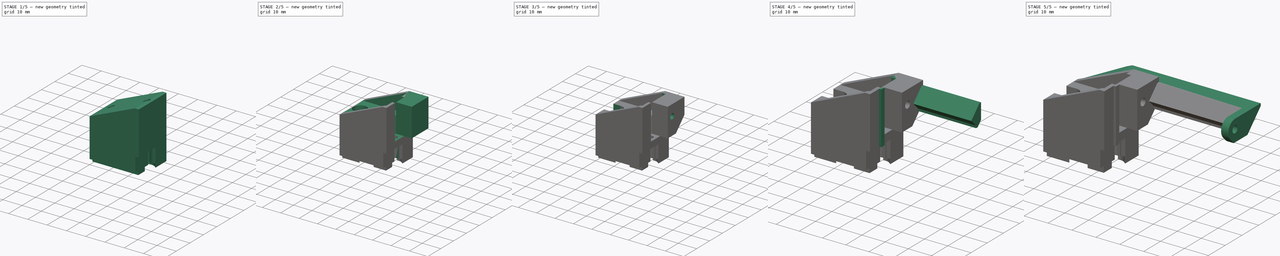
[diagram: build sequence overview — one tinted view per stage of 5, left to right]
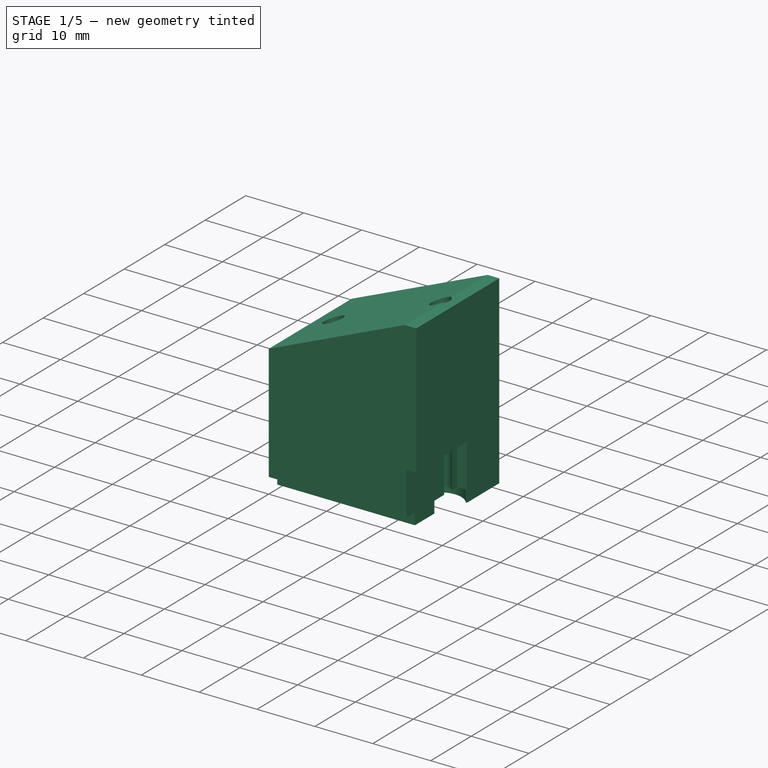
[diagram: stage 1 of 5 — iso view after this stage's code; geometry added in this stage tinted green]
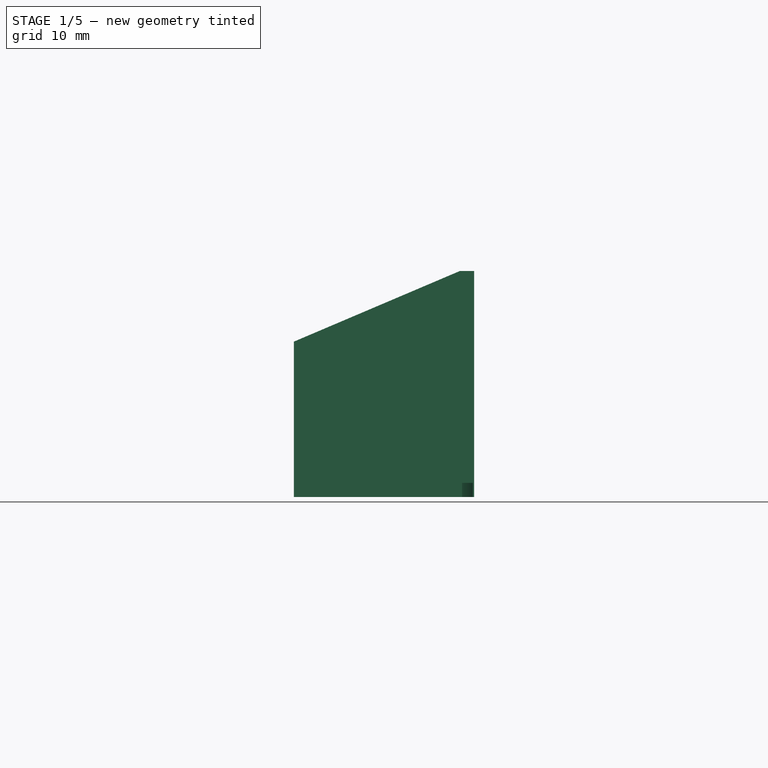
[diagram: stage 1 of 5 — front view after this stage's code; geometry added in this stage tinted green]
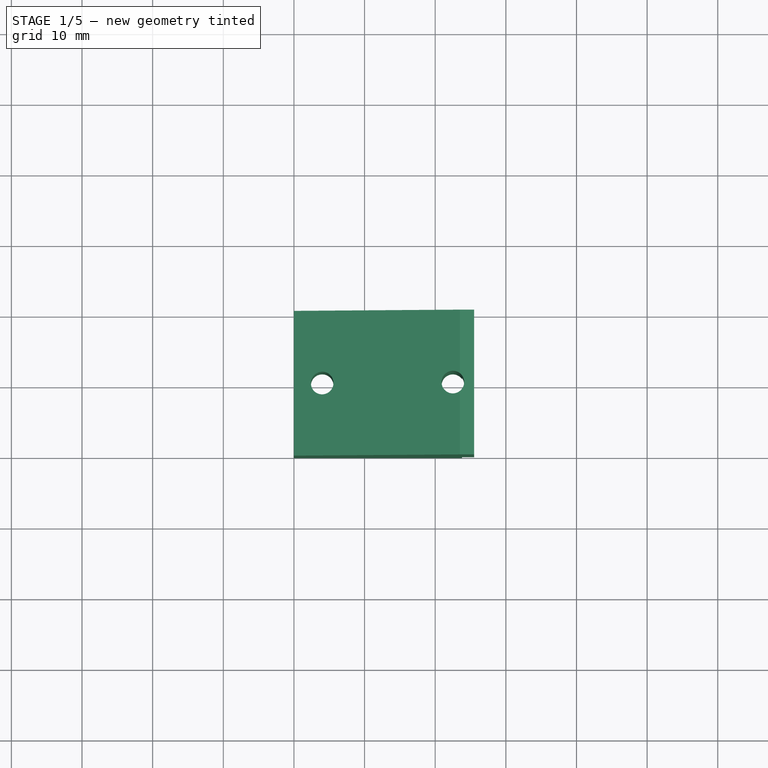
[diagram: stage 1 of 5 — top view after this stage's code; geometry added in this stage tinted green]
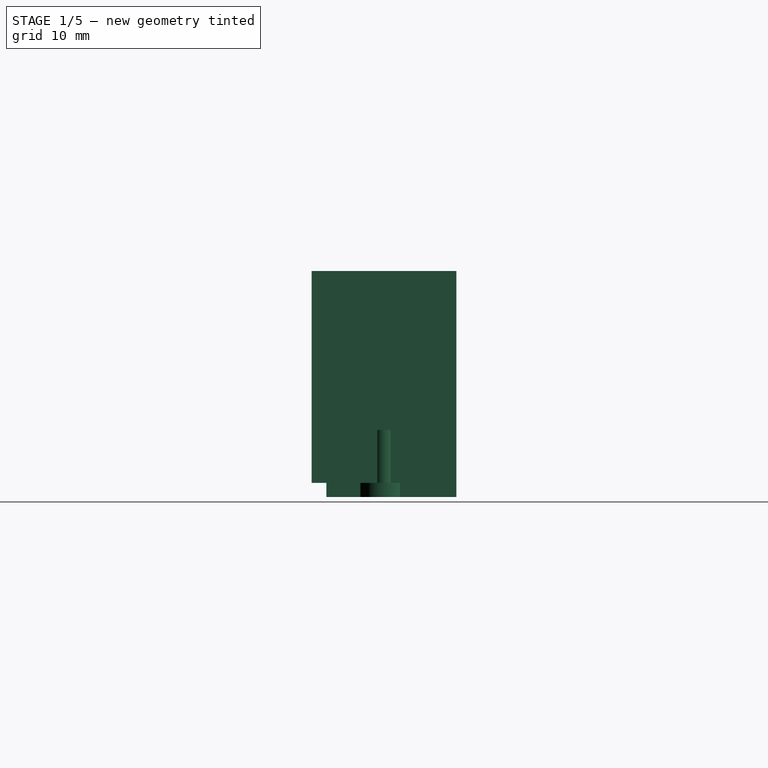
[diagram: stage 1 of 5 — right view after this stage's code; geometry added in this stage tinted green]
FCSTD DOCUMENT  (FreeCAD 1.0R38641 +468 (Git))
Label: k1_hopper_fixed_block
License: All rights reserved
LicenseURL: https://en.wikipedia.org/wiki/All_rights_reserved
objects: Sketcher::SketchObject×25, PartDesign::Pocket×20, PartDesign::Pad×11, PartDesign::Body×1
note: 144 computed .brp shape members not serialized (recipe doc carries the construction recipe); baked Part::Feature solids carry a one-line shape summary decoded from their .brp

FEATURE [Sketcher::SketchObject] Sketch
  ArcFitTolerance = 1e-06
  AttachmentSupport = -> [XY_Plane]
  FullyConstrained = true
  MakeInternals = false
  MapMode = 5
  sketch-geometry (4):
    g0: LineSegment StartX=0 StartY=0 StartZ=0 EndX=25.5 EndY=0 EndZ=0
    g1: LineSegment StartX=25.5 StartY=0 StartZ=0 EndX=25.5 EndY=20.5 EndZ=0
    g2: LineSegment StartX=25.5 StartY=20.5 StartZ=0 EndX=0 EndY=20.5 EndZ=0
    g3: LineSegment StartX=0 StartY=20.5 StartZ=0 EndX=0 EndY=0 EndZ=0
  constraints (11):
    c: Coincident(g0,g1)
    c: Coincident(g1,g2)
    c: Coincident(g2,g3)
    c: Coincident(g3,g0)
    c: Horizontal(g0)
    c: Horizontal(g2)
    c: Vertical(g1)
    c: Vertical(g3)
    c: Coincident(g0,g-1)
    c: Distance(g2,g2) = 25.5
    c: Distance(g3,g3) = 20.5
FEATURE [PartDesign::Pad] Pad
  Direction = (0,0,1)
  Length = 32
  Length2 = 10
  Profile = -> Sketch
  ReferenceAxis = -> Sketch [N_Axis]
  Refine = true
  Suppressed = false
  Type = 0
FEATURE [Sketcher::SketchObject] Sketch001
  ArcFitTolerance = 1e-06
  AttachmentSupport = -> [Pad]
  ExternalGeometry = -> [Pad]
  FullyConstrained = true
  MakeInternals = false
  MapMode = 5
  Placement = pos=(0,0,0) rot=(1,0,0;1.5708rad)
  sketch-geometry (3):
    g0: LineSegment StartX=0 StartY=22 StartZ=0 EndX=23.5 EndY=32 EndZ=0
    g1: LineSegment StartX=23.5 StartY=32 StartZ=0 EndX=0 EndY=32 EndZ=0
    g2: LineSegment StartX=0 StartY=22 StartZ=0 EndX=0 EndY=32 EndZ=0
  constraints (8):
    c: PointOnObject(g0,g-4)
    c: PointOnObject(g0,g-3)
    c: Coincident(g1,g0)
    c: Coincident(g1,g-4)
    c: Coincident(g2,g0)
    c: Coincident(g2,g1)
    c: DistanceY(g-1,g0) = 22
    c: Distance(g0,g-3) = 2
FEATURE [PartDesign::Pocket] Pocket
  BaseFeature = -> Pad
  Direction = (0,1,-2e-16)
  Length = 5
  Length2 = 5
  Profile = -> Sketch001
  ReferenceAxis = -> Sketch001 [N_Axis]
  Refine = true
  Suppressed = false
  Type = 1
FEATURE [Sketcher::SketchObject] Sketch002
  ArcFitTolerance = 1e-06
  AttachmentSupport = -> [Pocket]
  ExternalGeometry = -> [Pocket]
  FullyConstrained = true
  MakeInternals = false
  MapMode = 5
  Placement = pos=(0,0,0) rot=(1,0,0;1.5708rad)
  sketch-geometry (4):
    g0: LineSegment StartX=0 StartY=0 StartZ=0 EndX=25.5 EndY=0 EndZ=0
    g1: LineSegment StartX=25.5 StartY=0 StartZ=0 EndX=25.5 EndY=2 EndZ=0
    g2: LineSegment StartX=25.5 StartY=2 StartZ=0 EndX=0 EndY=2 EndZ=0
    g3: LineSegment StartX=0 StartY=2 StartZ=0 EndX=0 EndY=0 EndZ=0
  constraints (11):
    c: Coincident(g0,g1)
    c: Coincident(g1,g2)
    c: Coincident(g2,g3)
    c: Coincident(g3,g0)
    c: Horizontal(g0)
    c: Horizontal(g2)
    c: Vertical(g1)
    c: Vertical(g3)
    c: Coincident(g0,g-1)
    c: PointOnObject(g1,g-3)
    c: DistanceY(g1,g1) = 2
FEATURE [PartDesign::Pocket] Pocket001
  BaseFeature = -> Pocket
  Direction = (0,1,-2e-16)
  Length = 2.1
  Length2 = 5
  Profile = -> Sketch002
  ReferenceAxis = -> Sketch002 [N_Axis]
  Refine = true
  Suppressed = false
  Type = 0
FEATURE [Sketcher::SketchObject] Sketch003
  ArcFitTolerance = 1e-06
  AttachmentSupport = -> [Pocket001]
  ExternalGeometry = -> [Pocket001]
  FullyConstrained = true
  MakeInternals = false
  MapMode = 5
  Placement = pos=(0,0,0) rot=(1,0,0;1.5708rad)
  sketch-geometry (4):
    g0: LineSegment StartX=23.8 StartY=0 StartZ=0 EndX=25.5 EndY=0 EndZ=0
    g1: LineSegment StartX=25.5 StartY=0 StartZ=0 EndX=25.5 EndY=9.5 EndZ=0
    g2: LineSegment StartX=25.5 StartY=9.5 StartZ=0 EndX=23.8 EndY=9.5 EndZ=0
    g3: LineSegment StartX=23.8 StartY=9.5 StartZ=0 EndX=23.8 EndY=0 EndZ=0
  constraints (12):
    c: Coincident(g0,g1)
    c: Coincident(g1,g2)
    c: Coincident(g2,g3)
    c: Coincident(g3,g0)
    c: Horizontal(g0)
    c: Horizontal(g2)
    c: Vertical(g1)
    c: Vertical(g3)
    c: PointOnObject(g0,g-1)
    c: PointOnObject(g1,g-3)
    c: Distance(g2,g-2) = 23.8
    c: DistanceY(g1,g-3) = 22.5
FEATURE [PartDesign::Pocket] Pocket002
  BaseFeature = -> Pocket001
  Direction = (0,1,-2e-16)
  Length = 12.5
  Length2 = 5
  Profile = -> Sketch003
  ReferenceAxis = -> Sketch003 [N_Axis]
  Refine = true
  Suppressed = false
  Type = 0
FEATURE [Sketcher::SketchObject] Sketch004
  ArcFitTolerance = 1e-06
  AttachmentSupport = -> [Pocket002]
  ExternalGeometry = -> [Pocket002]
  FullyConstrained = true
  MakeInternals = false
  MapMode = 5
  Placement = pos=(0,0,0) rot=(1,0,0;3.14159rad)
  sketch-geometry (3):
    g0: LineSegment [constr] StartX=0 StartY=-10.25 StartZ=0 EndX=25.5 EndY=-10.25 EndZ=0
    g1: Circle CenterX=4 CenterY=-10.25 CenterZ=0 NormalX=0 NormalY=0 NormalZ=1 AngleXU=0 Radius=1.6
    g2: Circle CenterX=22.5 CenterY=-10.25 CenterZ=0 NormalX=0 NormalY=0 NormalZ=1 AngleXU=0 Radius=1.6
  constraints (10):
    c: PointOnObject(g0,g-2)
    c: PointOnObject(g0,g-3)
    c: Horizontal(g0)
    c: Distance(g0,g-1) = 10.25
    c: PointOnObject(g1,g0)
    c: PointOnObject(g2,g0)
    c: Distance(g1,g-2) = 4
    c: Distance(g2,g-3) = 3
    c: Equal(g1,g2)
    c: Diameter(g1) = 3.2
FEATURE [PartDesign::Pocket] Pocket003
  BaseFeature = -> Pocket002
  Direction = (0,0,1)
  Length = 5
  Length2 = 5
  Profile = -> Sketch004
  ReferenceAxis = -> Sketch004 [N_Axis]
  Refine = true
  Suppressed = false
  Type = 1
FEATURE [Sketcher::SketchObject] Sketch005
  ArcFitTolerance = 1e-06
  AttachmentSupport = -> [Pocket003]
  ExternalGeometry = -> [Pocket003]
  FullyConstrained = true
  MakeInternals = false
  MapMode = 5
  Placement = pos=(0,0,0) rot=(1,0,0;3.14159rad)
  sketch-geometry (3):
    g0: LineSegment [constr] StartX=4 StartY=-10.25 StartZ=0 EndX=22.5 EndY=-10.25 EndZ=0
    g1: Circle CenterX=4 CenterY=-10.25 CenterZ=0 NormalX=0 NormalY=0 NormalZ=1 AngleXU=0 Radius=3.6
    g2: Circle CenterX=22.5 CenterY=-10.25 CenterZ=0 NormalX=0 NormalY=0 NormalZ=1 AngleXU=0 Radius=3.6
  constraints (6):
    c: Coincident(g0,g-3)
    c: Coincident(g0,g-4)
    c: Coincident(g1,g0)
    c: Coincident(g2,g0)
    c: Equal(g2,g1)
    c: Diameter(g1) = 7.2
FEATURE [PartDesign::Pocket] Pocket004
  BaseFeature = -> Pocket003
  Direction = (0,0,1)
  Length = 0
  Length2 = 5
  Profile = -> Sketch005
  ReferenceAxis = -> Sketch005 [N_Axis]
  Refine = true
  Suppressed = false
  Type = 3
  UpToFace = -> Pocket003 [Face8]
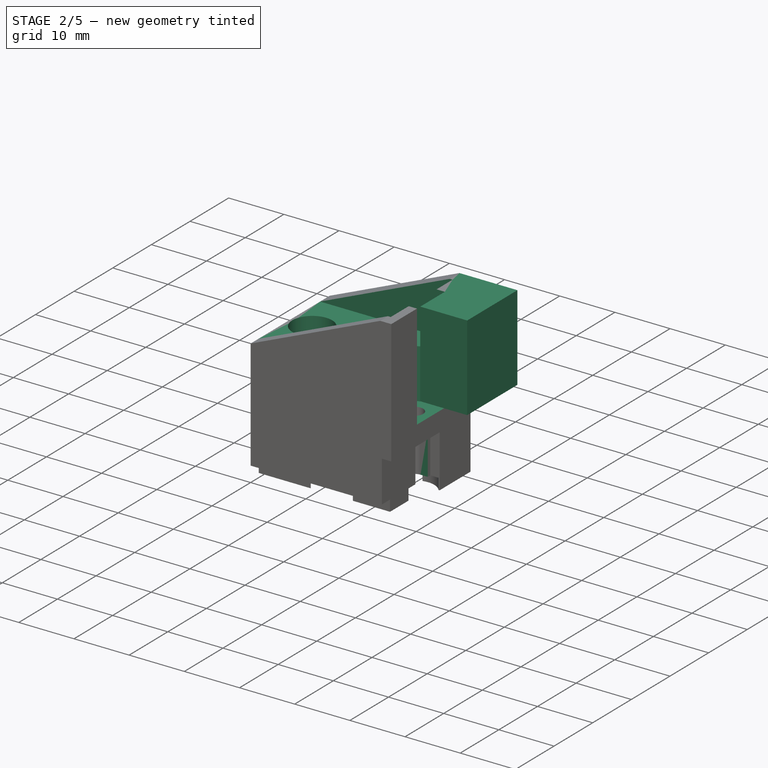
[diagram: stage 2 of 5 — iso view after this stage's code; geometry added in this stage tinted green]
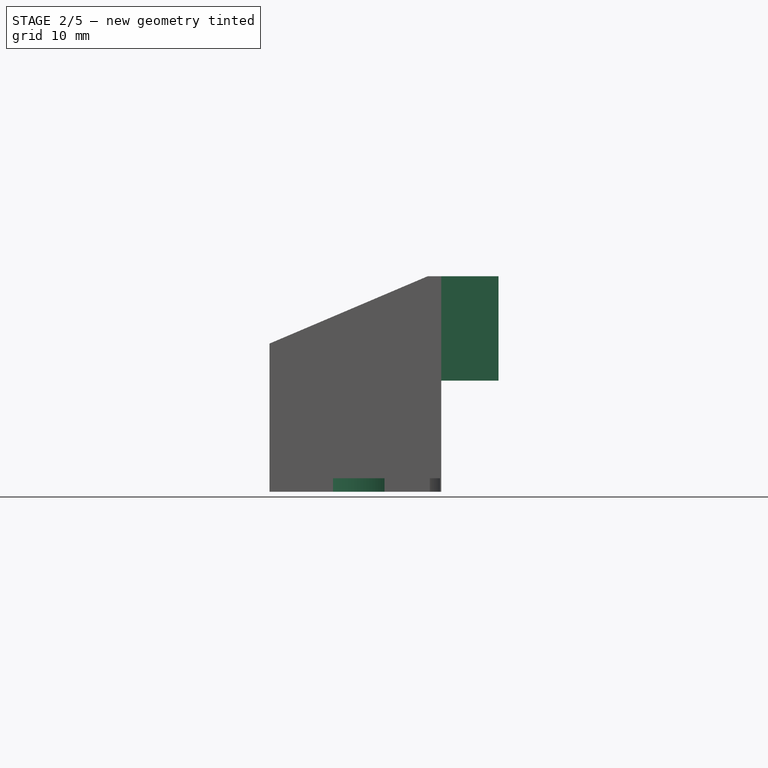
[diagram: stage 2 of 5 — front view after this stage's code; geometry added in this stage tinted green]
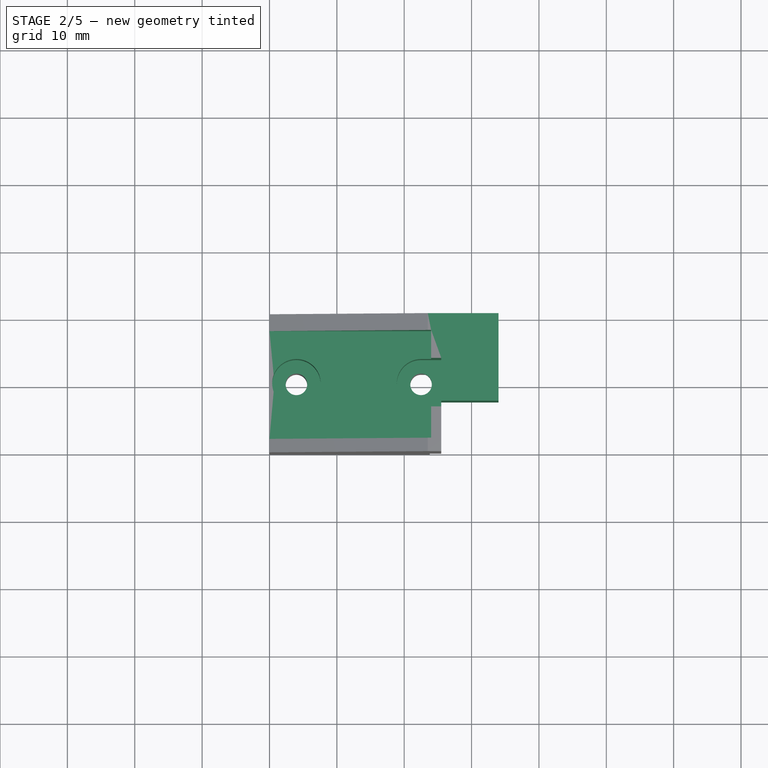
[diagram: stage 2 of 5 — top view after this stage's code; geometry added in this stage tinted green]
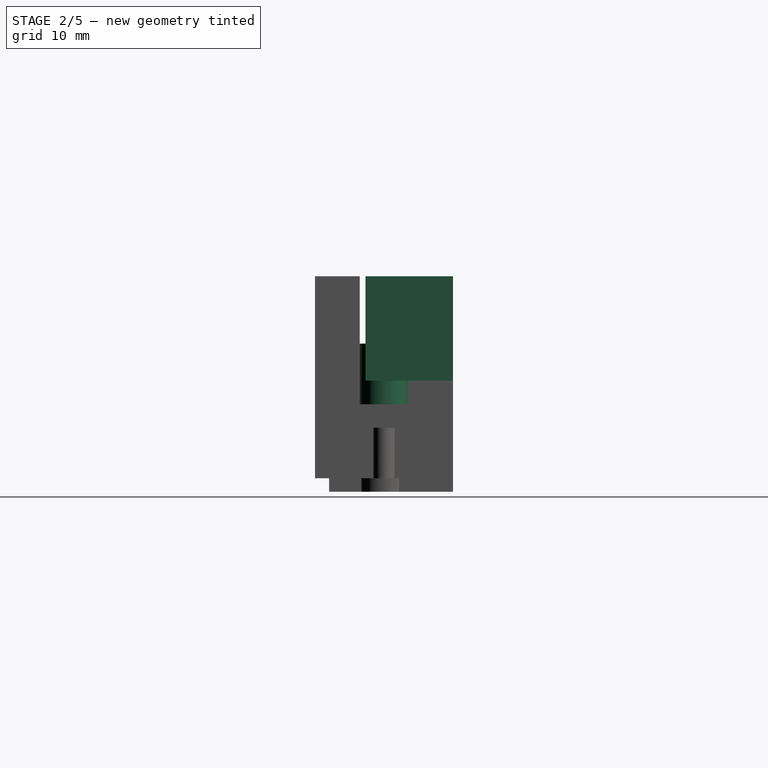
[diagram: stage 2 of 5 — right view after this stage's code; geometry added in this stage tinted green]
FEATURE [Sketcher::SketchObject] Sketch006
  ArcFitTolerance = 1e-06
  AttachmentSupport = -> [Pocket004]
  ExternalGeometry = -> [Pocket004]
  FullyConstrained = true
  MakeInternals = false
  MapMode = 5
  Placement = pos=(0,0,0) rot=(1,0,0;3.14159rad)
  sketch-geometry (2):
    g0: LineSegment [constr] StartX=4 StartY=-10.25 StartZ=0 EndX=22.5 EndY=-10.25 EndZ=0
    g1: Circle CenterX=13.25 CenterY=-10.25 CenterZ=0 NormalX=0 NormalY=0 NormalZ=1 AngleXU=0 Radius=9
  constraints (4):
    c: Coincident(g0,g-4)
    c: Coincident(g0,g-3)
    c: Symmetric(g0,g0,g1)
    c: Diameter(g1) = 18
FEATURE [PartDesign::Pocket] Pocket005
  BaseFeature = -> Pocket004
  Direction = (0,0,1)
  Length = 0
  Length2 = 5
  Profile = -> Sketch006
  ReferenceAxis = -> Sketch006 [N_Axis]
  Refine = true
  Suppressed = false
  Type = 3
  UpToFace = -> Pocket004 [Face19]
FEATURE [Sketcher::SketchObject] Sketch007
  ArcFitTolerance = 1e-06
  AttachmentSupport = -> [Pocket005]
  ExternalGeometry = -> [Pocket005]
  FullyConstrained = true
  MakeInternals = false
  MapMode = 5
  Placement = pos=(0,0,32) rot=(0,0,1;0rad)
  sketch-geometry (2):
    g0: Circle CenterX=4 CenterY=10.25 CenterZ=0 NormalX=0 NormalY=0 NormalZ=1 AngleXU=0 Radius=3.6
    g1: Circle CenterX=22.5 CenterY=10.25 CenterZ=0 NormalX=0 NormalY=0 NormalZ=1 AngleXU=0 Radius=3.6
  constraints (4):
    c: Coincident(g0,g-4)
    c: Coincident(g1,g-3)
    c: Equal(g1,g0)
    c: Diameter(g0) = 7.2
FEATURE [PartDesign::Pocket] Pocket006
  BaseFeature = -> Pocket005
  Direction = (0,0,-1)
  Length = 19
  Length2 = 5
  Profile = -> Sketch007
  ReferenceAxis = -> Sketch007 [N_Axis]
  Refine = true
  Suppressed = false
  Type = 0
FEATURE [Sketcher::SketchObject] Sketch008
  ArcFitTolerance = 1e-06
  AttachmentSupport = -> [Pocket006]
  ExternalGeometry = -> [Pocket006]
  FullyConstrained = true
  MakeInternals = false
  MapMode = 5
  Placement = pos=(0,0,32) rot=(0,0,1;0rad)
  sketch-geometry (4):
    g0: LineSegment StartX=22.5 StartY=13.85 StartZ=0 EndX=22.5 EndY=6.65 EndZ=0
    g1: LineSegment StartX=22.5 StartY=6.65 StartZ=0 EndX=25.5 EndY=6.65 EndZ=0
    g2: LineSegment StartX=25.5 StartY=6.65 StartZ=0 EndX=25.5 EndY=13.85 EndZ=0
    g3: LineSegment StartX=25.5 StartY=13.85 StartZ=0 EndX=22.5 EndY=13.85 EndZ=0
  constraints (12):
    c: Coincident(g0,g1)
    c: Coincident(g1,g2)
    c: Coincident(g2,g3)
    c: Coincident(g3,g0)
    c: Vertical(g0)
    c: Vertical(g2)
    c: Horizontal(g1)
    c: Horizontal(g3)
    c: PointOnObject(g0,g-3)
    c: PointOnObject(g1,g-5)
    c: Tangent(g3,g-3)
    c: Tangent(g1,g-3)
FEATURE [PartDesign::Pocket] Pocket007
  BaseFeature = -> Pocket006
  Direction = (0,0,-1)
  Length = 0
  Length2 = 5
  Profile = -> Sketch008
  ReferenceAxis = -> Sketch008 [N_Axis]
  Refine = true
  Suppressed = false
  Type = 3
  UpToFace = -> Pocket006 [Face19]
FEATURE [Sketcher::SketchObject] Sketch009
  ArcFitTolerance = 1e-06
  AttachmentSupport = -> [Pocket007]
  ExternalGeometry = -> [Pocket007]
  FullyConstrained = true
  MakeInternals = false
  MapMode = 5
  Placement = pos=(0,0,2) rot=(1,0,0;3.14159rad)
  sketch-geometry (4):
    g0: LineSegment StartX=22.5 StartY=-8.65 StartZ=0 EndX=22.5 EndY=-11.85 EndZ=0
    g1: LineSegment StartX=22.5 StartY=-11.85 StartZ=0 EndX=25.5 EndY=-11.85 EndZ=0
    g2: LineSegment StartX=25.5 StartY=-11.85 StartZ=0 EndX=25.5 EndY=-8.65 EndZ=0
    g3: LineSegment StartX=25.5 StartY=-8.65 StartZ=0 EndX=22.5 EndY=-8.65 EndZ=0
  constraints (12):
    c: Coincident(g0,g1)
    c: Coincident(g1,g2)
    c: Coincident(g2,g3)
    c: Coincident(g3,g0)
    c: Vertical(g0)
    c: Vertical(g2)
    c: Horizontal(g1)
    c: Horizontal(g3)
    c: PointOnObject(g0,g-5)
    c: PointOnObject(g1,g-6)
    c: Tangent(g1,g-4)
    c: Tangent(g3,g-5)
FEATURE [PartDesign::Pocket] Pocket008
  BaseFeature = -> Pocket007
  Direction = (0,0,1)
  Length = 0
  Length2 = 5
  Profile = -> Sketch009
  ReferenceAxis = -> Sketch009 [N_Axis]
  Refine = true
  Suppressed = false
  Type = 3
  UpToFace = -> Pocket007 [Face3]
FEATURE [Sketcher::SketchObject] Sketch010
  ArcFitTolerance = 1e-06
  AttachmentSupport = -> [Pocket008]
  ExternalGeometry = -> [Pocket008]
  FullyConstrained = true
  MakeInternals = false
  MapMode = 5
  Placement = pos=(25.5,0,0) rot=(0.57735,0.57735,0.57735;2.0944rad)
  sketch-geometry (4):
    g0: LineSegment StartX=20.5 StartY=32 StartZ=0 EndX=7.5 EndY=32 EndZ=0
    g1: LineSegment StartX=7.5 StartY=32 StartZ=0 EndX=7.5 EndY=16.5 EndZ=0
    g2: LineSegment StartX=7.5 StartY=16.5 StartZ=0 EndX=20.5 EndY=16.5 EndZ=0
    g3: LineSegment StartX=20.5 StartY=16.5 StartZ=0 EndX=20.5 EndY=32 EndZ=0
  constraints (11):
    c: Coincident(g0,g1)
    c: Coincident(g1,g2)
    c: Coincident(g2,g3)
    c: Coincident(g3,g0)
    c: Horizontal(g0)
    c: Horizontal(g2)
    c: Vertical(g1)
    c: Vertical(g3)
    c: Coincident(g0,g-3)
    c: Distance(g0,g0) = 13
    c: Distance(g3,g3) = 15.5
FEATURE [PartDesign::Pad] Pad001
  BaseFeature = -> Pocket008
  Direction = (1,0,0)
  Length = 8.5
  Length2 = 10
  Profile = -> Sketch010
  ReferenceAxis = -> Sketch010 [N_Axis]
  Refine = true
  Suppressed = false
  Type = 0
FEATURE [Sketcher::SketchObject] Sketch011
  ArcFitTolerance = 1e-06
  AttachmentSupport = -> [Pad001]
  ExternalGeometry = -> [Pad001]
  FullyConstrained = true
  MakeInternals = false
  MapMode = 5
  Placement = pos=(0,0,0) rot=(0.57735,-0.57735,-0.57735;2.0944rad)
  sketch-geometry (4):
    g0: LineSegment StartX=-18 StartY=22 StartZ=0 EndX=-2 EndY=22 EndZ=0
    g1: LineSegment StartX=-2 StartY=22 StartZ=0 EndX=-2 EndY=32 EndZ=0
    g2: LineSegment StartX=-2 StartY=32 StartZ=0 EndX=-18 EndY=32 EndZ=0
    g3: LineSegment StartX=-18 StartY=32 StartZ=0 EndX=-18 EndY=22 EndZ=0
  constraints (12):
    c: Coincident(g0,g1)
    c: Coincident(g1,g2)
    c: Coincident(g2,g3)
    c: Coincident(g3,g0)
    c: Horizontal(g0)
    c: Horizontal(g2)
    c: Vertical(g1)
    c: Vertical(g3)
    c: PointOnObject(g0,g-5)
    c: PointOnObject(g1,g-6)
    c: Distance(g2,g-4) = 2.5
    c: Distance(g1,g-6) = 2
FEATURE [PartDesign::Pocket] Pocket009
  BaseFeature = -> Pad001
  Direction = (1,0,0)
  Length = 24
  Length2 = 5
  Profile = -> Sketch011
  ReferenceAxis = -> Sketch011 [N_Axis]
  Refine = true
  Suppressed = false
  Type = 0
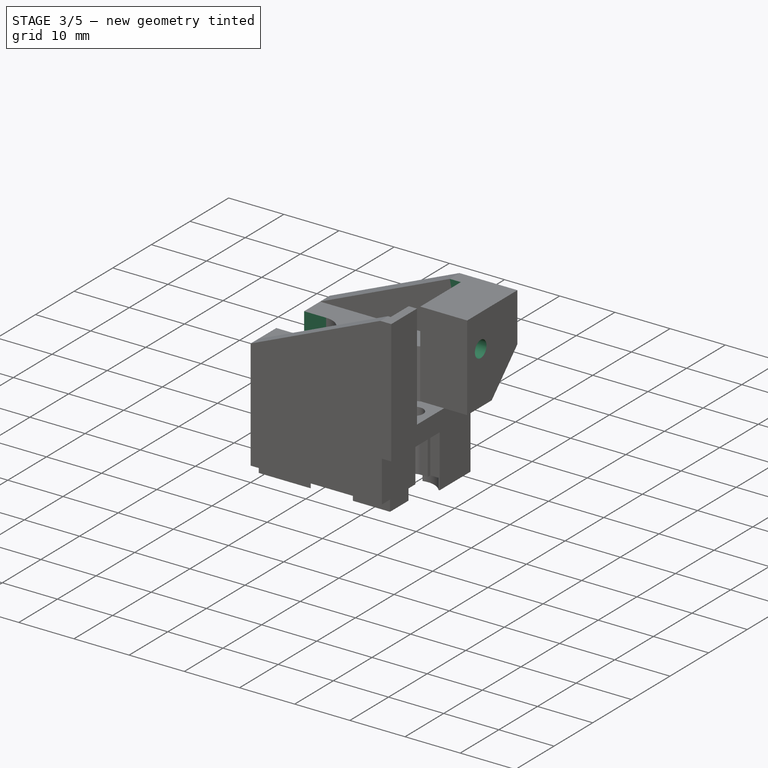
[diagram: stage 3 of 5 — iso view after this stage's code; geometry added in this stage tinted green]
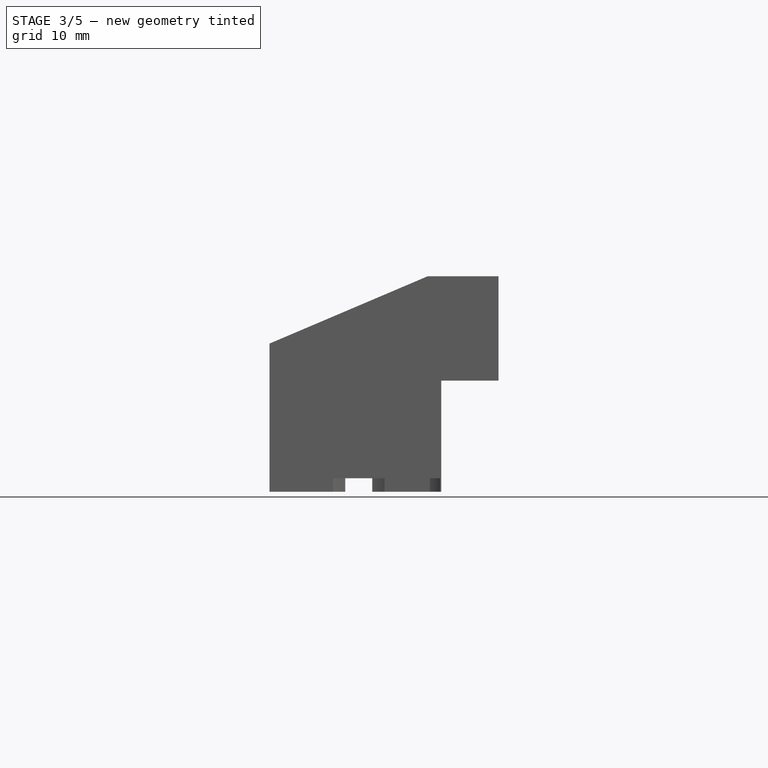
[diagram: stage 3 of 5 — front view after this stage's code; geometry added in this stage tinted green]
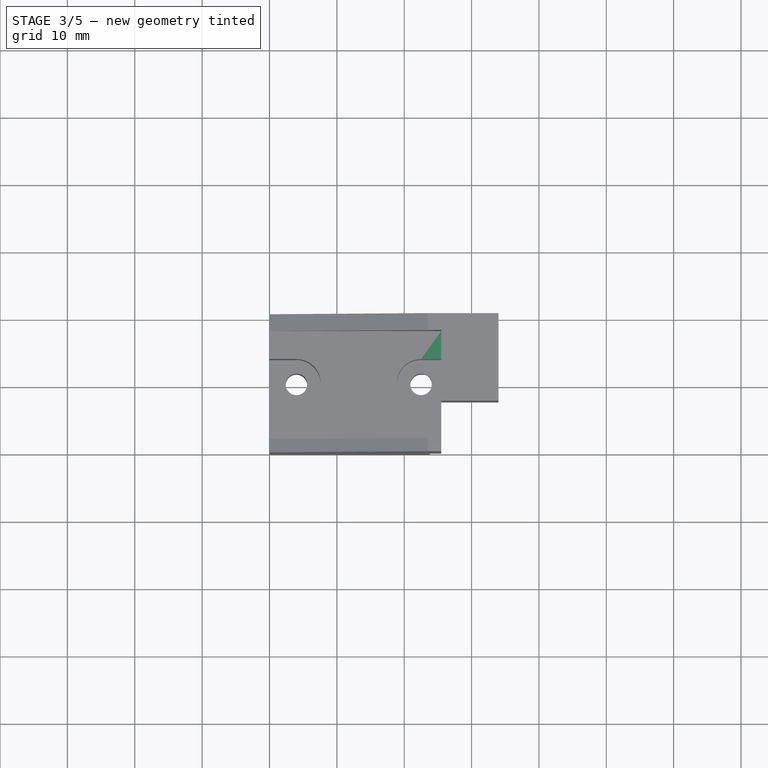
[diagram: stage 3 of 5 — top view after this stage's code; geometry added in this stage tinted green]
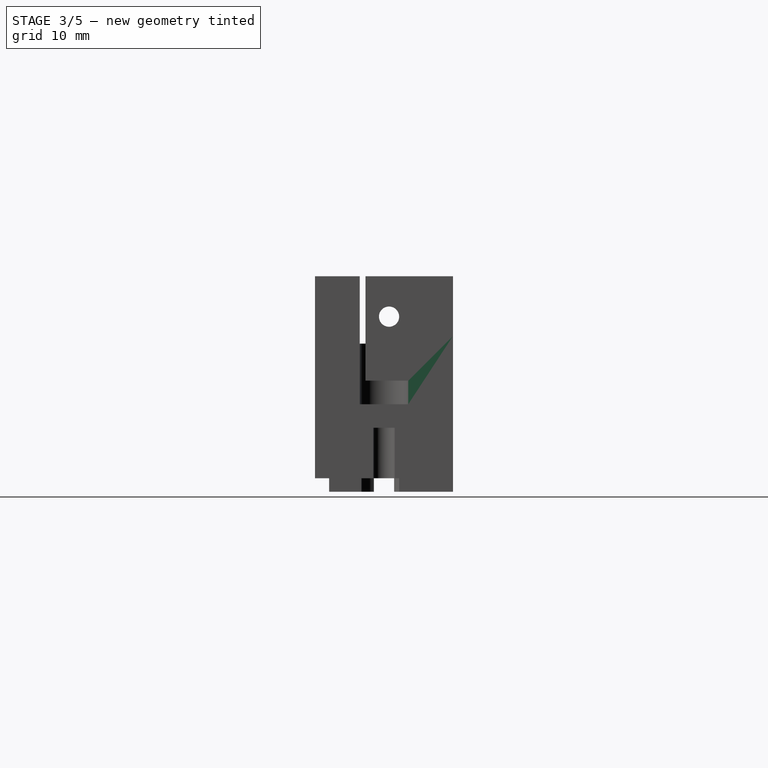
[diagram: stage 3 of 5 — right view after this stage's code; geometry added in this stage tinted green]
FEATURE [Sketcher::SketchObject] Sketch012
  ArcFitTolerance = 1e-06
  AttachmentSupport = -> [Pocket009]
  ExternalGeometry = -> [Pocket009]
  FullyConstrained = true
  MakeInternals = false
  MapMode = 5
  Placement = pos=(0,0,22) rot=(0,0,1;0rad)
  sketch-geometry (4):
    g0: LineSegment StartX=4 StartY=13.85 StartZ=0 EndX=0 EndY=13.85 EndZ=0
    g1: LineSegment StartX=0 StartY=13.85 StartZ=0 EndX=0 EndY=6.65 EndZ=0
    g2: LineSegment StartX=0 StartY=6.65 StartZ=0 EndX=4 EndY=6.65 EndZ=0
    g3: LineSegment StartX=4 StartY=6.65 StartZ=0 EndX=4 EndY=13.85 EndZ=0
  constraints (11):
    c: Coincident(g0,g1)
    c: Coincident(g1,g2)
    c: Coincident(g2,g3)
    c: Coincident(g3,g0)
    c: Horizontal(g0)
    c: Horizontal(g2)
    c: Vertical(g1)
    c: Vertical(g3)
    c: PointOnObject(g1,g-2)
    c: Tangent(g0,g-3) = -1.5708
    c: Tangent(g2,g-3)
FEATURE [PartDesign::Pocket] Pocket010
  BaseFeature = -> Pocket009
  Direction = (0,0,-1)
  Length = 0
  Length2 = 5
  Profile = -> Sketch012
  ReferenceAxis = -> Sketch012 [N_Axis]
  Refine = true
  Suppressed = false
  Type = 3
  UpToFace = -> Pocket009 [Face42]
FEATURE [Sketcher::SketchObject] Sketch013
  ArcFitTolerance = 1e-06
  AttachmentSupport = -> [Pocket010]
  ExternalGeometry = -> [Pocket010]
  FullyConstrained = true
  MakeInternals = false
  MapMode = 5
  Placement = pos=(0,0,32) rot=(0,0,1;0rad)
  sketch-geometry (4):
    g0: LineSegment StartX=24 StartY=6.65 StartZ=0 EndX=25.5 EndY=6.65 EndZ=0
    g1: LineSegment StartX=25.5 StartY=6.65 StartZ=0 EndX=25.5 EndY=8.5 EndZ=0
    g2: LineSegment StartX=25.5 StartY=8.5 StartZ=0 EndX=24 EndY=8.5 EndZ=0
    g3: LineSegment StartX=24 StartY=8.5 StartZ=0 EndX=24 EndY=6.65 EndZ=0
  constraints (11):
    c: Coincident(g0,g1)
    c: Coincident(g1,g2)
    c: Coincident(g2,g3)
    c: Coincident(g3,g0)
    c: Horizontal(g0)
    c: Horizontal(g2)
    c: Vertical(g1)
    c: Vertical(g3)
    c: Coincident(g0,g-3)
    c: PointOnObject(g1,g-4)
    c: Distance(g-4,g1) = 1
FEATURE [PartDesign::Pad] Pad002
  BaseFeature = -> Pocket010
  Direction = (0,0,1)
  Length = 10
  Length2 = 10
  Profile = -> Sketch013
  ReferenceAxis = -> Sketch013 [N_Axis]
  Refine = true
  Reversed = true
  Suppressed = false
  Type = 3
  UpToFace = -> Pocket010 [Face19]
FEATURE [PartDesign::Pocket] Pocket011
  BaseFeature = -> Pad002
  Direction = (1,0,0)
  Length = 0
  Length2 = 5
  Profile = -> Pad002 [Face36]
  Refine = true
  Suppressed = false
  Type = 3
  UpToFace = -> Pad002 [Face35]
FEATURE [Sketcher::SketchObject] Sketch014
  ArcFitTolerance = 1e-06
  AttachmentSupport = -> [Pocket011]
  ExternalGeometry = -> [Pocket011]
  FullyConstrained = true
  MakeInternals = false
  MapMode = 5
  Placement = pos=(34,0,0) rot=(0.57735,0.57735,0.57735;2.0944rad)
  sketch-geometry (1):
    g0: Circle CenterX=11 CenterY=26 CenterZ=0 NormalX=0 NormalY=0 NormalZ=1 AngleXU=0 Radius=1.5
  constraints (3):
    c: Diameter(g0) = 3
    c: Distance(g0,g-3) = 9.5
    c: Distance(g0,g-4) = 6
FEATURE [PartDesign::Pocket] Pocket012
  BaseFeature = -> Pocket011
  Direction = (-1,0,0)
  Length = 5
  Length2 = 5
  Profile = -> Sketch014
  ReferenceAxis = -> Sketch014 [N_Axis]
  Refine = true
  Suppressed = false
  Type = 1
FEATURE [PartDesign::Pocket] Pocket013
  BaseFeature = -> Pocket012
  Direction = (0,-1,0)
  Length = 0
  Length2 = 5
  Profile = -> Pocket012 [Face43]
  Refine = true
  Suppressed = false
  Type = 3
  UpToFace = -> Pocket012 [Face36]
FEATURE [Sketcher::SketchObject] Sketch015
  ArcFitTolerance = 1e-06
  AttachmentSupport = -> [Pocket013]
  ExternalGeometry = -> [Pocket013]
  FullyConstrained = true
  MakeInternals = false
  MapMode = 5
  Placement = pos=(0,0,0) rot=(1,0,0;3.14159rad)
  sketch-geometry (10):
    g0: LineSegment [constr] StartX=13.25 StartY=-10.25 StartZ=0 EndX=13.25 EndY=-20.5 EndZ=0
    g1: LineSegment StartX=11.25 StartY=-15.7 StartZ=0 EndX=11.25 EndY=-20.5 EndZ=0
    g2: LineSegment StartX=11.25 StartY=-20.5 StartZ=0 EndX=15.25 EndY=-20.5 EndZ=0
    g3: LineSegment StartX=15.25 StartY=-20.5 StartZ=0 EndX=15.25 EndY=-15.7 EndZ=0
    g4: LineSegment StartX=15.25 StartY=-15.7 StartZ=0 EndX=11.25 EndY=-15.7 EndZ=0
    g5: LineSegment [constr] StartX=4 StartY=-10.25 StartZ=0 EndX=0 EndY=-10.25 EndZ=0
    g6: LineSegment StartX=0 StartY=-8.75 StartZ=0 EndX=0 EndY=-11.75 EndZ=0
    g7: LineSegment StartX=0 StartY=-11.75 StartZ=0 EndX=4 EndY=-11.75 EndZ=0
    g8: LineSegment StartX=4 StartY=-11.75 StartZ=0 EndX=4 EndY=-8.75 EndZ=0
    g9: LineSegment StartX=4 StartY=-8.75 StartZ=0 EndX=0 EndY=-8.75 EndZ=0
  constraints (28):
    c: Coincident(g0,g-4)
    c: PointOnObject(g0,g-3)
    c: Vertical(g0)
    c: Coincident(g1,g2)
    c: Coincident(g2,g3)
    c: Coincident(g3,g4)
    c: Coincident(g4,g1)
    c: Vertical(g1)
    c: Vertical(g3)
    c: Horizontal(g2)
    c: PointOnObject(g2,g-3)
    c: Symmetric(g1,g3,g0)
    c: Distance(g4,g4) = 4
    c: Distance(g3,g3) = 4.8
    c: Coincident(g5,g-5)
    c: PointOnObject(g5,g-2)
    c: Horizontal(g5)
    c: Coincident(g6,g7)
    c: Coincident(g7,g8)
    c: Coincident(g8,g9)
    c: Coincident(g9,g6)
    c: Vertical(g6)
    c: Horizontal(g7)
    c: Horizontal(g9)
    c: PointOnObject(g6,g-2)
    c: Symmetric(g7,g8,g5)
    c: Distance(g8,g8) = 3
    c: Distance(g9,g9) = 4
FEATURE [PartDesign::Pocket] Pocket014
  BaseFeature = -> Pocket013
  Direction = (0,0,1)
  Length = 0
  Length2 = 5
  Profile = -> Sketch015
  ReferenceAxis = -> Sketch015 [N_Axis]
  Refine = true
  Suppressed = false
  Type = 3
  UpToFace = -> Pocket013 [Face4]
FEATURE [Sketcher::SketchObject] Sketch016
  ArcFitTolerance = 1e-06
  AttachmentSupport = -> [Pocket014]
  ExternalGeometry = -> [Pocket014]
  FullyConstrained = true
  MakeInternals = false
  MapMode = 5
  Placement = pos=(34,0,0) rot=(0.57735,0.57735,0.57735;2.0944rad)
  sketch-geometry (3):
    g0: LineSegment StartX=13.85 StartY=16.5 StartZ=0 EndX=20.5 EndY=23.15 EndZ=0
    g1: LineSegment StartX=20.5 StartY=23.15 StartZ=0 EndX=20.5 EndY=16.5 EndZ=0
    g2: LineSegment StartX=20.5 StartY=16.5 StartZ=0 EndX=13.85 EndY=16.5 EndZ=0
  constraints (7):
    c: Coincident(g0,g-5)
    c: PointOnObject(g0,g-3)
    c: Coincident(g1,g0)
    c: Coincident(g1,g-4)
    c: Coincident(g2,g1)
    c: Coincident(g2,g0)
    c: Equal(g2,g1)
FEATURE [PartDesign::Pocket] Pocket015
  BaseFeature = -> Pocket014
  Direction = (-1,0,0)
  Length = 0
  Length2 = 5
  Profile = -> Sketch016
  ReferenceAxis = -> Sketch016 [N_Axis]
  Refine = true
  Suppressed = false
  Type = 3
  UpToFace = -> Pocket014 [Face33]
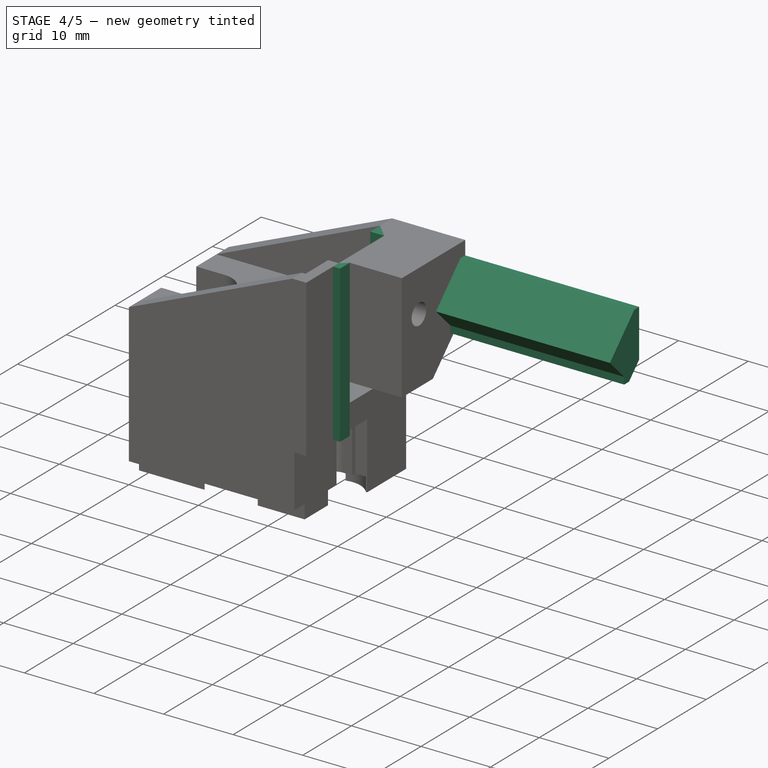
[diagram: stage 4 of 5 — iso view after this stage's code; geometry added in this stage tinted green]
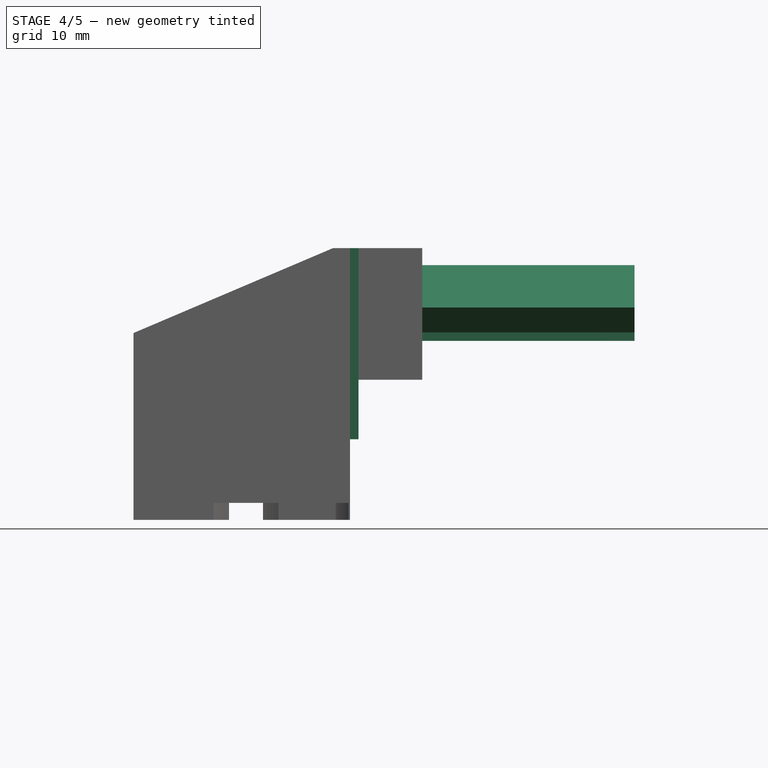
[diagram: stage 4 of 5 — front view after this stage's code; geometry added in this stage tinted green]
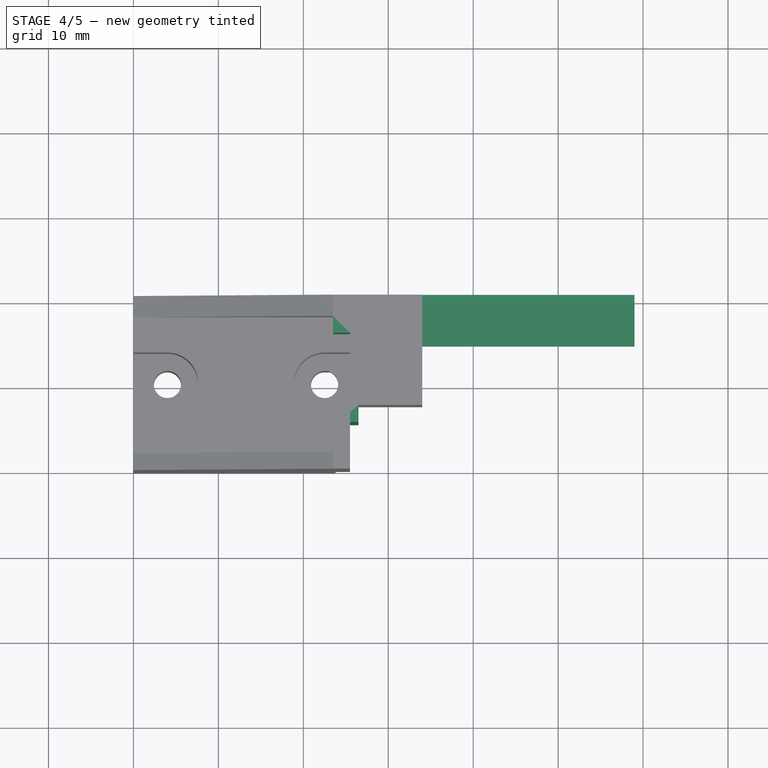
[diagram: stage 4 of 5 — top view after this stage's code; geometry added in this stage tinted green]
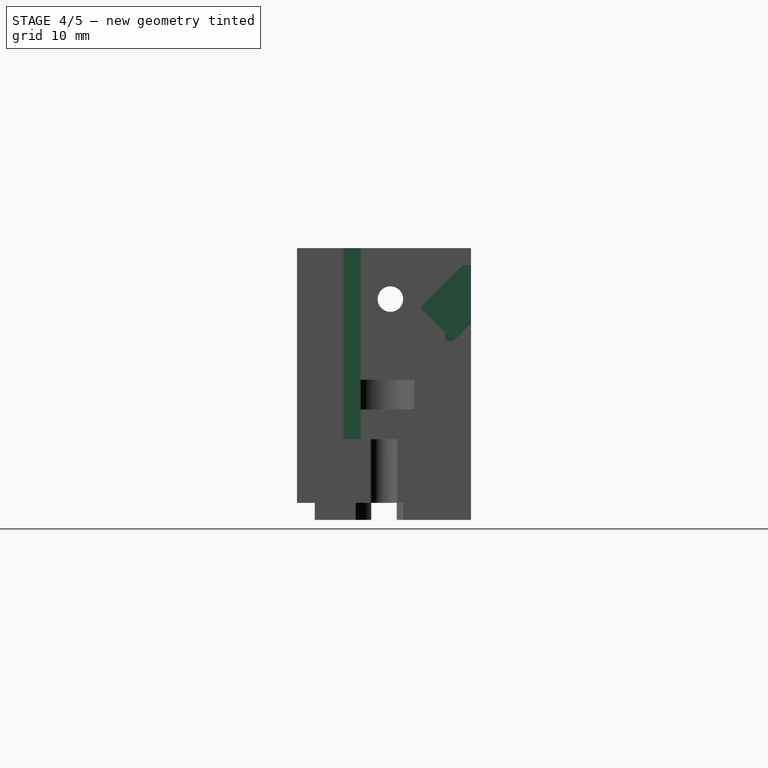
[diagram: stage 4 of 5 — right view after this stage's code; geometry added in this stage tinted green]
FEATURE [Sketcher::SketchObject] Sketch017
  ArcFitTolerance = 1e-06
  AttachmentSupport = -> [Pocket015]
  ExternalGeometry = -> [Pocket015]
  FullyConstrained = true
  MakeInternals = false
  MapMode = 5
  Placement = pos=(34,0,0) rot=(0.57735,0.57735,0.57735;2.0944rad)
  sketch-geometry (4):
    g0: LineSegment StartX=20.5 StartY=31 StartZ=0 EndX=14.5 EndY=25 EndZ=0
    g1: LineSegment StartX=14.5 StartY=25 StartZ=0 EndX=14.5 EndY=17.15 EndZ=0
    g2: LineSegment StartX=14.5 StartY=17.15 StartZ=0 EndX=20.5 EndY=23.15 EndZ=0
    g3: LineSegment StartX=20.5 StartY=23.15 StartZ=0 EndX=20.5 EndY=31 EndZ=0
  constraints (11):
    c: PointOnObject(g0,g-3)
    c: Distance(g0,g-3) = 6
    c: Distance(g0,g-3) = 1
    c: Parallel(g-5,g0)
    c: Coincident(g1,g0)
    c: PointOnObject(g1,g-5)
    c: Vertical(g1)
    c: Coincident(g2,g1)
    c: Coincident(g2,g-5)
    c: Coincident(g3,g2)
    c: Coincident(g3,g0)
FEATURE [PartDesign::Pad] Pad003
  BaseFeature = -> Pocket015
  Direction = (1,0,0)
  Length = 25
  Length2 = 10
  Profile = -> Sketch017
  ReferenceAxis = -> Sketch017 [N_Axis]
  Refine = true
  Suppressed = false
  Type = 0
FEATURE [Sketcher::SketchObject] Sketch018
  ArcFitTolerance = 1e-06
  AttachmentSupport = -> [Pad003]
  ExternalGeometry = -> [Pad003]
  FullyConstrained = true
  MakeInternals = false
  MapMode = 5
  Placement = pos=(59,0,0) rot=(0.57735,0.57735,0.57735;2.0944rad)
  sketch-geometry (8):
    g0: LineSegment StartX=20.5 StartY=30 StartZ=0 EndX=20.5 EndY=31 EndZ=0
    g1: LineSegment StartX=20.5 StartY=31 StartZ=0 EndX=19.5 EndY=31 EndZ=0
    g2: LineSegment StartX=19.5 StartY=31 StartZ=0 EndX=19.5 EndY=30 EndZ=0
    g3: LineSegment StartX=19.5 StartY=30 StartZ=0 EndX=20.5 EndY=30 EndZ=0
    g4: LineSegment StartX=15.5 StartY=18.15 StartZ=0 EndX=14.5 EndY=18.15 EndZ=0
    g5: LineSegment StartX=14.5 StartY=18.15 StartZ=0 EndX=14.5 EndY=17.15 EndZ=0
    g6: LineSegment StartX=14.5 StartY=17.15 StartZ=0 EndX=15.5 EndY=17.15 EndZ=0
    g7: LineSegment StartX=15.5 StartY=17.15 StartZ=0 EndX=15.5 EndY=18.15 EndZ=0
  constraints (23):
    c: Coincident(g0,g1)
    c: Coincident(g1,g2)
    c: Coincident(g2,g3)
    c: Coincident(g3,g0)
    c: Vertical(g0)
    c: Vertical(g2)
    c: Horizontal(g1)
    c: Horizontal(g3)
    c: PointOnObject(g0,g-6)
    c: PointOnObject(g-6,g1)
    c: PointOnObject(g2,g-3)
    c: Distance(g0,g0) = 1
    c: Coincident(g4,g5)
    c: Coincident(g5,g6)
    c: Coincident(g6,g7)
    c: Coincident(g7,g4)
    c: Horizontal(g4)
    c: Horizontal(g6)
    c: Vertical(g5)
    c: Vertical(g7)
    c: PointOnObject(g4,g-4)
    c: Coincident(g5,g-5)
    c: Distance(g7,g7) = 1
FEATURE [PartDesign::Pocket] Pocket016
  BaseFeature = -> Pad003
  Direction = (-1,0,0)
  Length = 0
  Length2 = 5
  Profile = -> Sketch018
  ReferenceAxis = -> Sketch018 [N_Axis]
  Refine = true
  Suppressed = false
  Type = 3
  UpToFace = -> Pad003 [Face45]
FEATURE [Sketcher::SketchObject] Sketch019
  ArcFitTolerance = 1e-06
  AttachmentSupport = -> [Pocket016]
  ExternalGeometry = -> [Pocket016]
  FullyConstrained = true
  MakeInternals = false
  MapMode = 5
  Placement = pos=(0,0,32) rot=(0,0,1;0rad)
  sketch-geometry (4):
    g0: LineSegment StartX=23.5 StartY=18 StartZ=0 EndX=23.5 EndY=16 EndZ=0
    g1: LineSegment StartX=23.5 StartY=16 StartZ=0 EndX=25.5 EndY=16 EndZ=0
    g2: LineSegment StartX=25.5 StartY=16 StartZ=0 EndX=25.5 EndY=18 EndZ=0
    g3: LineSegment StartX=25.5 StartY=18 StartZ=0 EndX=23.5 EndY=18 EndZ=0
  constraints (11):
    c: Coincident(g0,g1)
    c: Coincident(g1,g2)
    c: Coincident(g2,g3)
    c: Coincident(g3,g0)
    c: Vertical(g0)
    c: Vertical(g2)
    c: Horizontal(g1)
    c: Horizontal(g3)
    c: Coincident(g0,g-3)
    c: PointOnObject(g1,g-4)
    c: Equal(g3,g2)
FEATURE [PartDesign::Pad] Pad004
  BaseFeature = -> Pocket016
  Direction = (0,0,1)
  Length = 10
  Length2 = 10
  Profile = -> Sketch019
  ReferenceAxis = -> Sketch019 [N_Axis]
  Refine = true
  Suppressed = false
  Type = 3
  UpToFace = -> Pocket016 [Face10]
FEATURE [Sketcher::SketchObject] Sketch020
  ArcFitTolerance = 1e-06
  AttachmentSupport = -> [Pad004]
  ExternalGeometry = -> [Pad004]
  FullyConstrained = true
  MakeInternals = false
  MapMode = 5
  Placement = pos=(0,0,32) rot=(0,0,1;0rad)
  sketch-geometry (4):
    g0: LineSegment StartX=25.5 StartY=5.5 StartZ=0 EndX=26.5 EndY=5.5 EndZ=0
    g1: LineSegment StartX=26.5 StartY=5.5 StartZ=0 EndX=26.5 EndY=7.5 EndZ=0
    g2: LineSegment StartX=26.5 StartY=7.5 StartZ=0 EndX=25.5 EndY=7.5 EndZ=0
    g3: LineSegment StartX=25.5 StartY=7.5 StartZ=0 EndX=25.5 EndY=5.5 EndZ=0
  constraints (12):
    c: Coincident(g0,g1)
    c: Coincident(g1,g2)
    c: Coincident(g2,g3)
    c: Coincident(g3,g0)
    c: Horizontal(g0)
    c: Horizontal(g2)
    c: Vertical(g1)
    c: Vertical(g3)
    c: PointOnObject(g0,g-4)
    c: PointOnObject(g1,g-3)
    c: Distance(g1,g1) = 2
    c: Distance(g2,g2) = 1
FEATURE [PartDesign::Pad] Pad005
  BaseFeature = -> Pad004
  Direction = (0,0,1)
  Length = 10
  Length2 = 10
  Profile = -> Sketch020
  ReferenceAxis = -> Sketch020 [N_Axis]
  Refine = true
  Suppressed = false
  Type = 3
  UpToFace = -> Pad004 [Face34]
FEATURE [Sketcher::SketchObject] Sketch021
  ArcFitTolerance = 1e-06
  AttachmentSupport = -> [Pad005]
  ExternalGeometry = -> [Pad005]
  FullyConstrained = true
  MakeInternals = false
  MapMode = 5
  Placement = pos=(59,0,0) rot=(0.57735,0.57735,0.57735;2.0944rad)
  sketch-geometry (3):
    g0: LineSegment StartX=14.5 StartY=25 StartZ=0 EndX=18.425 EndY=21.075 EndZ=0
    g1: LineSegment StartX=14.5 StartY=25 StartZ=0 EndX=14.5 EndY=17.15 EndZ=0
    g2: LineSegment StartX=14.5 StartY=17.15 StartZ=0 EndX=18.425 EndY=21.075 EndZ=0
  constraints (8):
    c: Coincident(g0,g-3)
    c: PointOnObject(g0,g-4)
    c: Coincident(g1,g0)
    c: PointOnObject(g1,g-5)
    c: Vertical(g1)
    c: Coincident(g2,g1)
    c: Coincident(g2,g0)
    c: Perpendicular(g0,g2)
FEATURE [PartDesign::Pocket] Pocket017
  BaseFeature = -> Pad005
  Direction = (-1,0,0)
  Length = 0
  Length2 = 5
  Profile = -> Sketch021
  ReferenceAxis = -> Sketch021 [N_Axis]
  Refine = true
  Suppressed = false
  Type = 3
  UpToFace = -> Pad005 [Face48]
FEATURE [Sketcher::SketchObject] Sketch022
  ArcFitTolerance = 1e-06
  AttachmentSupport = -> [Pocket017]
  ExternalGeometry = -> [Pocket017]
  FullyConstrained = true
  MakeInternals = false
  MapMode = 5
  Placement = pos=(59,0,0) rot=(0.57735,0.57735,0.57735;2.0944rad)
  sketch-geometry (3):
    g0: LineSegment StartX=18.425 StartY=21.075 StartZ=0 EndX=17.425 EndY=21.075 EndZ=0
    g1: LineSegment StartX=17.425 StartY=21.075 StartZ=0 EndX=17.425 EndY=22.075 EndZ=0
    g2: LineSegment StartX=17.425 StartY=22.075 StartZ=0 EndX=18.425 EndY=21.075 EndZ=0
  constraints (8):
    c: Coincident(g0,g-3)
    c: Coincident(g1,g0)
    c: PointOnObject(g1,g-3)
    c: Coincident(g2,g1)
    c: Coincident(g2,g0)
    c: Horizontal(g0)
    c: Vertical(g1)
    c: Distance(g0,g0) = 1
FEATURE [PartDesign::Pad] Pad006
  BaseFeature = -> Pocket017
  Direction = (1,0,0)
  Length = 10
  Length2 = 10
  Profile = -> Sketch022
  ReferenceAxis = -> Sketch022 [N_Axis]
  Refine = true
  Suppressed = false
  Type = 3
  UpToFace = -> Pocket017 [Face62]
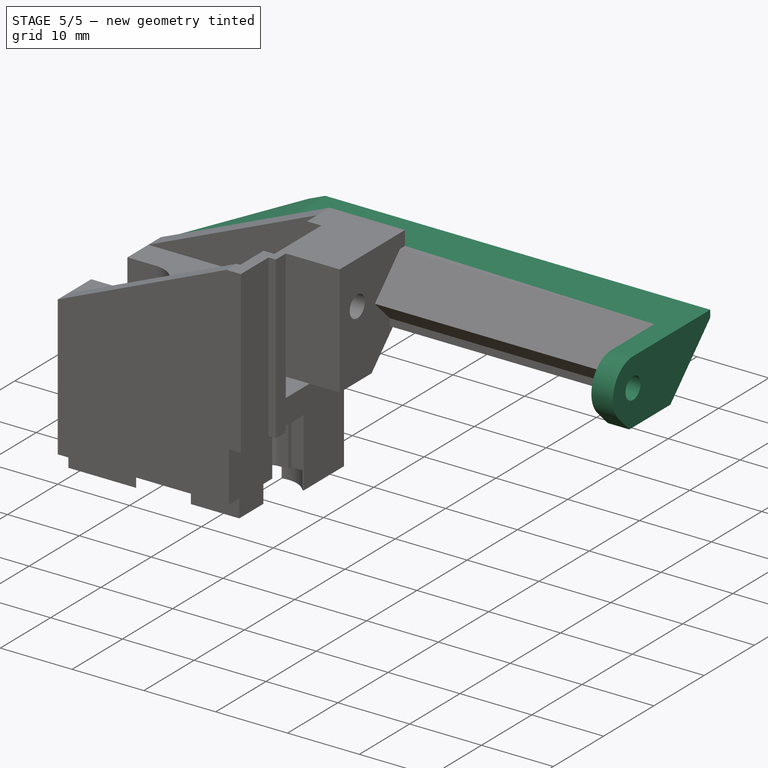
[diagram: stage 5 of 5 — iso view after this stage's code; geometry added in this stage tinted green]
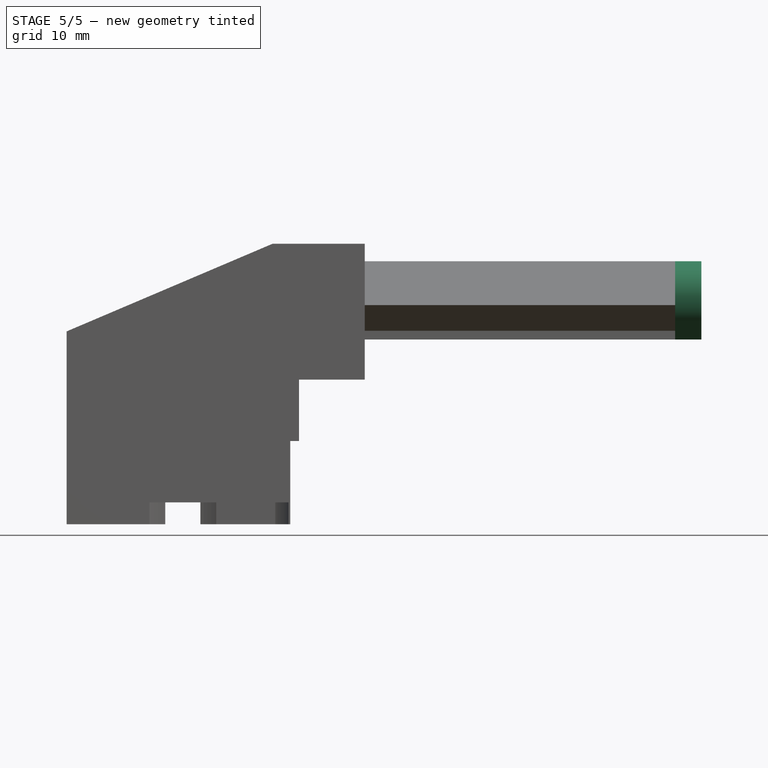
[diagram: stage 5 of 5 — front view after this stage's code; geometry added in this stage tinted green]
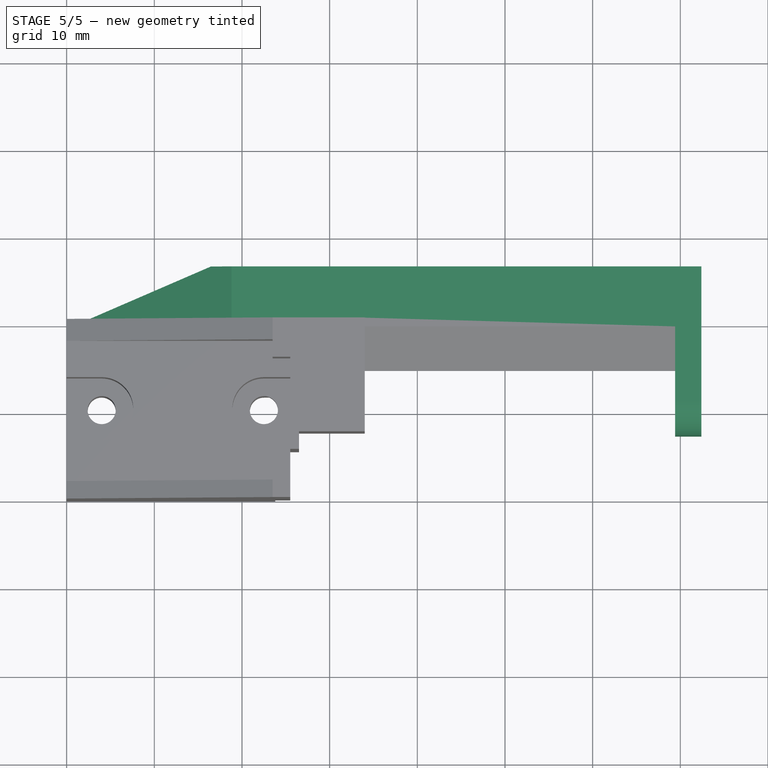
[diagram: stage 5 of 5 — top view after this stage's code; geometry added in this stage tinted green]
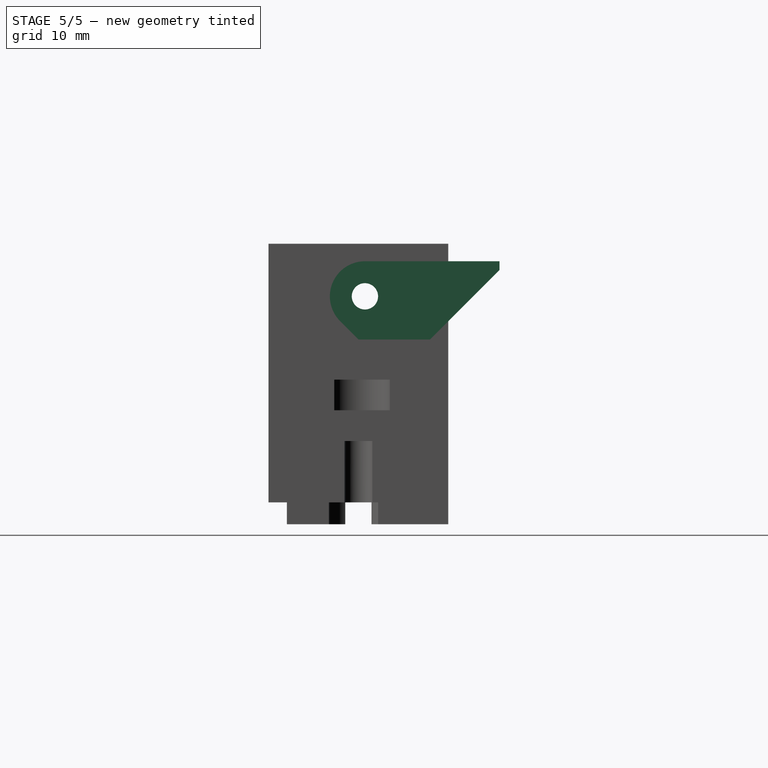
[diagram: stage 5 of 5 — right view after this stage's code; geometry added in this stage tinted green]
FEATURE [PartDesign::Pad] Pad007
  BaseFeature = -> Pad006
  Direction = (1,0,0)
  Length = 1
  Length2 = 10
  Profile = -> Pad006 [Face64]
  Refine = true
  Suppressed = false
  Type = 0
FEATURE [PartDesign::Pocket] Pocket018
  BaseFeature = -> Pad007
  Direction = (0,0,1)
  Length = 0.5
  Length2 = 5
  Profile = -> Pad007 [Face4]
  Refine = true
  Suppressed = false
  Type = 0
FEATURE [Sketcher::SketchObject] Sketch023
  ArcFitTolerance = 1e-06
  AttachmentSupport = -> [Pocket018]
  ExternalGeometry = -> [Pocket018]
  FullyConstrained = true
  MakeInternals = false
  MapMode = 5
  Placement = pos=(60,0,0) rot=(0.57735,0.57735,0.57735;2.0944rad)
  sketch-geometry (4):
    g0: LineSegment StartX=20.5 StartY=23.15 StartZ=0 EndX=26.35 EndY=29 EndZ=0
    g1: LineSegment StartX=20.5 StartY=23.15 StartZ=0 EndX=20.5 EndY=30 EndZ=0
    g2: LineSegment StartX=20.5 StartY=30 StartZ=0 EndX=26.35 EndY=30 EndZ=0
    g3: LineSegment StartX=26.35 StartY=30 StartZ=0 EndX=26.35 EndY=29 EndZ=0
  constraints (10):
    c: Coincident(g0,g-3)
    c: Coincident(g1,g0)
    c: Parallel(g0,g-3)
    c: Coincident(g2,g1)
    c: Horizontal(g2)
    c: Coincident(g3,g2)
    c: Coincident(g3,g0)
    c: Vertical(g3)
    c: Distance(g3,g3) = 1
    c: Coincident(g1,g-4)
FEATURE [PartDesign::Pad] Pad008
  BaseFeature = -> Pocket018
  Direction = (1,0,0)
  Length = 58
  Length2 = 10
  Profile = -> Sketch023
  ReferenceAxis = -> Sketch023 [N_Axis]
  Refine = true
  Reversed = true
  Suppressed = false
  Type = 0
FEATURE [PartDesign::Pocket] Pocket019
  BaseFeature = -> Pad008
  Direction = (0,1,0)
  Length = 5
  Length2 = 5
  Profile = -> Pad008 [Face47]
  Refine = true
  Suppressed = false
  Type = 1
FEATURE [PartDesign::Pad] Pad009
  BaseFeature = -> Pocket019
  Direction = (1,0,0)
  Length = 9.4
  Length2 = 10
  Profile = -> Pocket019 [Face62]
  Refine = true
  Suppressed = false
  Type = 0
FEATURE [Sketcher::SketchObject] Sketch024
  ArcFitTolerance = 1e-06
  AttachmentSupport = -> [Pad009]
  ExternalGeometry = -> [Pad009]
  FullyConstrained = true
  MakeInternals = false
  MapMode = 5
  Placement = pos=(69.4,0,0) rot=(0.57735,0.57735,0.57735;2.0944rad)
  sketch-geometry (8):
    g0: ArcOfCircle CenterX=11 CenterY=26 CenterZ=0 NormalX=0 NormalY=0 NormalZ=1 AngleXU=0 Radius=4 StartAngle=1.5708 EndAngle=3.92699
    g1: LineSegment StartX=20.5 StartY=30 StartZ=0 EndX=11 EndY=30 EndZ=0
    g2: LineSegment StartX=18.425 StartY=21.075 StartZ=0 EndX=10.2681 EndY=21.075 EndZ=0
    g3: LineSegment StartX=8.17157 StartY=23.1716 StartZ=0 EndX=10.2681 EndY=21.075 EndZ=0
    g4: LineSegment StartX=18.425 StartY=21.075 StartZ=0 EndX=26.35 EndY=29 EndZ=0
    g5: LineSegment StartX=26.35 StartY=29 StartZ=0 EndX=26.35 EndY=30 EndZ=0
    g6: LineSegment StartX=26.35 StartY=30 StartZ=0 EndX=20.5 EndY=30 EndZ=0
    g7: Circle CenterX=11 CenterY=26 CenterZ=0 NormalX=0 NormalY=0 NormalZ=1 AngleXU=0 Radius=1.5
  constraints (18):
    c: Coincident(g0,g-5)
    c: PointOnObject(g1,g-4)
    c: Horizontal(g1)
    c: PointOnObject(g1,g-6)
    c: Tangent(g1,g0) = -1.5708
    c: Horizontal(g2)
    c: Coincident(g3,g2)
    c: Tangent(g3,g0) = -1.5708
    c: Angle(g2,g3) = 2.35619
    c: Coincident(g4,g2)
    c: Coincident(g4,g-3)
    c: Coincident(g2,g-3)
    c: Coincident(g5,g4)
    c: Coincident(g5,g-4)
    c: Coincident(g6,g5)
    c: Coincident(g6,g1)
    c: Coincident(g7,g0)
    c: Diameter(g7) = 3
FEATURE [PartDesign::Pad] Pad010
  BaseFeature = -> Pad009
  Direction = (1,0,0)
  Length = 3
  Length2 = 10
  Profile = -> Sketch024
  ReferenceAxis = -> Sketch024 [N_Axis]
  Refine = true
  Suppressed = false
  Type = 0
FEATURE [PartDesign::Body] Body  label="k1_hopper_fixed_block"
  AllowCompound = false
  Group = -> [Sketch,Pad,Sketch001,Pocket,Sketch002,Pocket001,Sketch003,Pocket002,Sketch004,Pocket003,Sketch005,Pocket004,Sketch006,Pocket005,Sketch007,Pocket006,Sketch008,Pocket007,Sketch009,Pocket008,Sketch010,Pad001,Sketch011,Pocket009,Sketch012,Pocket010,Sketch013,Pad002,Pocket011,Sketch014,Pocket012,Pocket013,Sketch015,Pocket014,Sketch016,Pocket015,Sketch017,Pad003,Sketch018,Pocket016,Sketch019,Pad004,+14 more]
  Origin = -> Origin
  Tip = -> Pad010
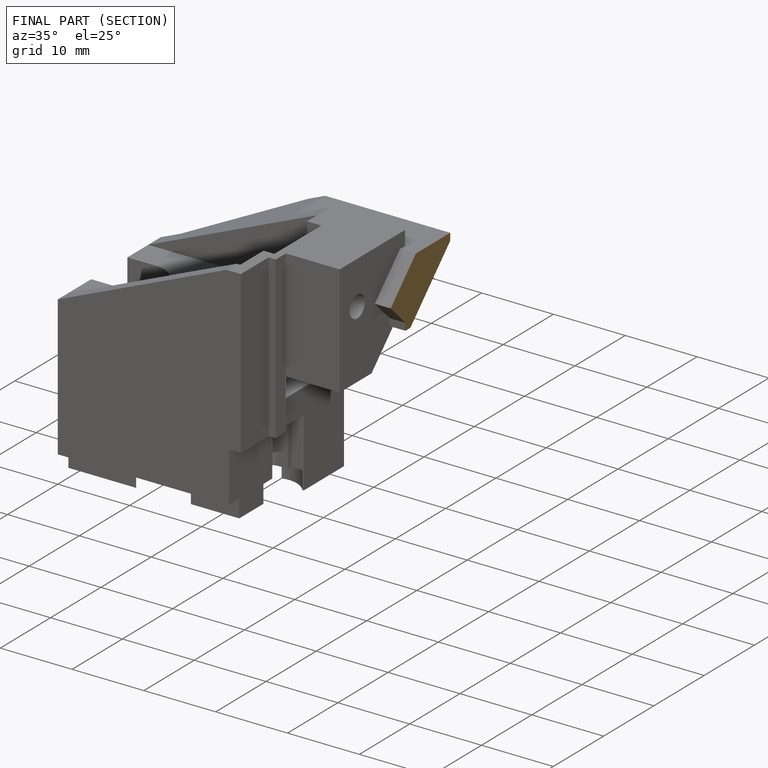
[diagram: finished part — half-section view (interior)]
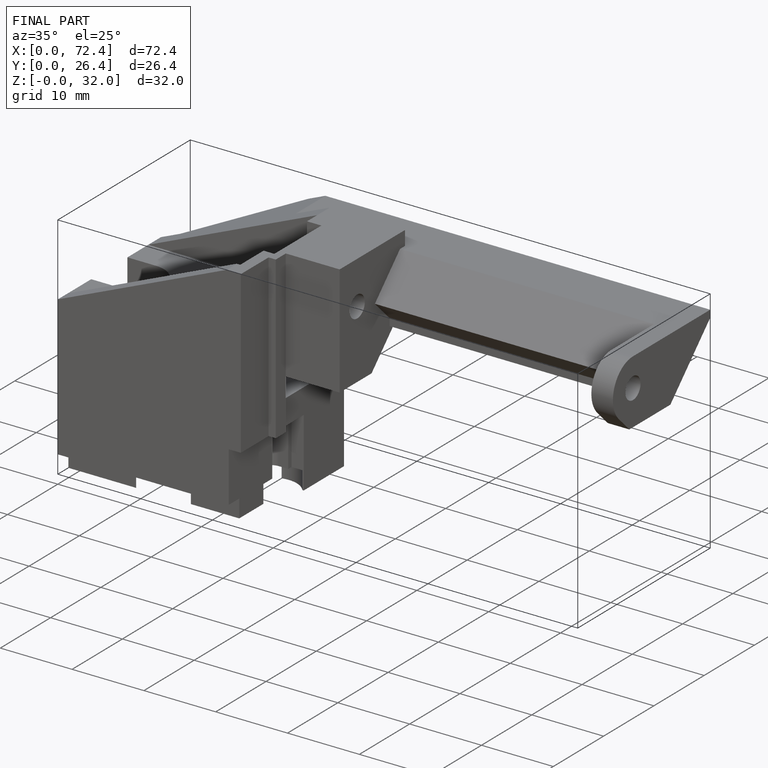
[diagram: finished part — iso view with bounding-box wireframe]
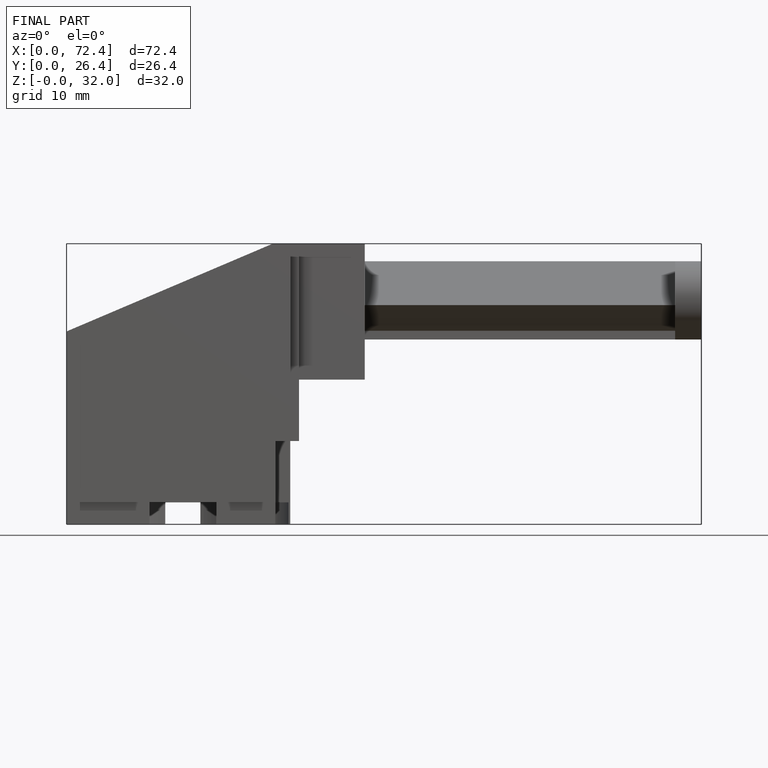
[diagram: finished part — front view with bounding-box wireframe]
